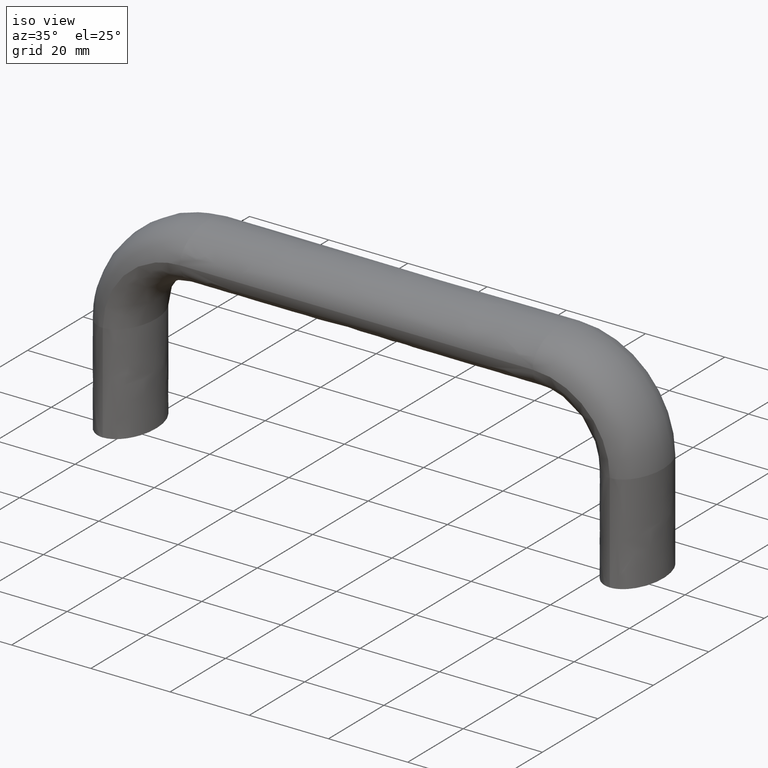
[diagram: clean part render]
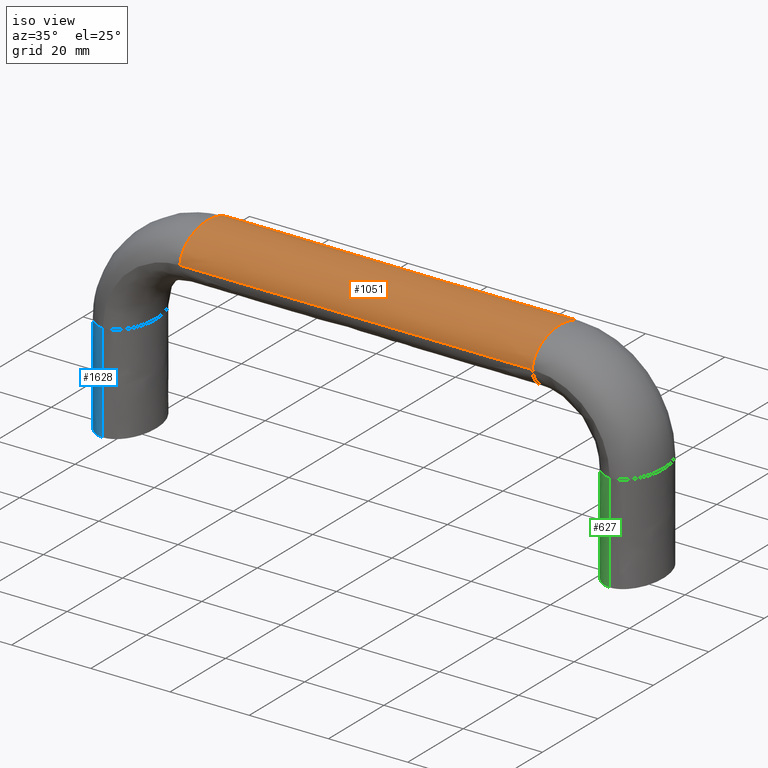
[diagram: same view with three faces highlighted in distinct colors, each labeled with its STEP entity id]
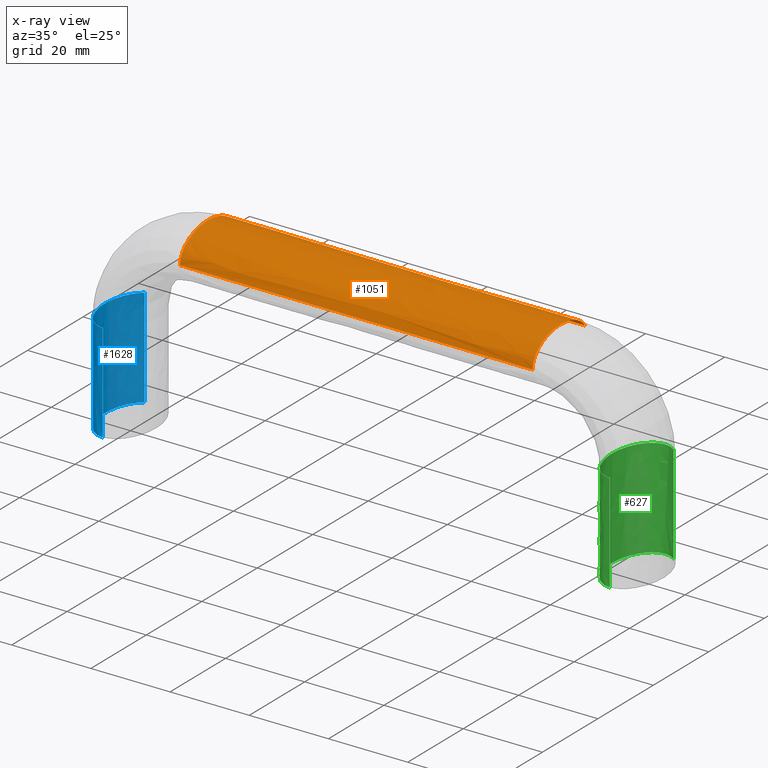
[diagram: x-ray of the same camera — body ghosted, the three highlighted faces saturated]
A machine part, iso view with three faces highlighted in distinct colors.
The next image is the same camera in x-ray (body ghosted, the three faces saturated) — at least one of them is partly hidden behind the body in this view.
Their STEP definitions:

[orange] entity #1051 — the highlighted face is a freeform B-spline surface patch.
#774=CARTESIAN_POINT('',(108.500007000000000,9.039503756692849,47.265149685643273));
#775=VERTEX_POINT('',#774);
#783=CARTESIAN_POINT('',(108.500007000000000,-10.0,44.500007999999852));
#784=VERTEX_POINT('',#783);
#785=CARTESIAN_POINT('',(108.500007000000000,9.039503756692849,47.265149685643273));
#786=CARTESIAN_POINT('',(108.500007000000000,8.550381046451996,47.942850478044889));
#787=CARTESIAN_POINT('',(108.500007000000000,7.885596350320669,48.566758527716537));
#788=CARTESIAN_POINT('',(108.500007000000000,5.219866587632820,50.299482873463603));
#789=CARTESIAN_POINT('',(108.500007000000000,2.617993877991495,51.000007999999902));
#790=CARTESIAN_POINT('',(108.500007000000000,-2.617993877991495,51.000007999999902));
#791=CARTESIAN_POINT('',(108.500007000000000,-5.219866587632820,50.299482873463603));
#792=CARTESIAN_POINT('',(108.500007000000000,-8.922269036098131,47.892921281961200));
#793=CARTESIAN_POINT('',(108.500007000000000,-10.0,46.201704020694301));
#794=CARTESIAN_POINT('',(108.500007000000000,-10.0,44.500007999999852));
#795=B_SPLINE_CURVE_WITH_KNOTS('',3,(#785,#786,#787,#788,#789,#790,#791,#792,#793,#794),.UNSPECIFIED.,.F.,.U.,(4,2,2,2,4),(0.570000000013989,0.625000000000000,0.750000000000000,0.875000000000000,1.0),.UNSPECIFIED.);
#796=EDGE_CURVE('',#775,#784,#795,.T.);
#916=CARTESIAN_POINT('',(19.054822512384039,9.096864509780549,47.183991545558627));
#917=CARTESIAN_POINT('',(19.054822294441230,8.602094762146560,47.892264700775570));
#918=CARTESIAN_POINT('',(19.054822109332989,7.917438167972254,48.544433898671883));
#919=CARTESIAN_POINT('',(19.054821650033020,5.219866576463987,50.297918230845113));
#920=CARTESIAN_POINT('',(19.054821485023279,2.617993877991495,50.998467150699057));
#921=CARTESIAN_POINT('',(19.054821485023279,-2.617993877991495,50.998467150699057));
#922=CARTESIAN_POINT('',(19.054821650033009,-5.219866585683339,50.297918234203578));
#923=CARTESIAN_POINT('',(19.054822285841620,-8.954109973809258,47.870571744125137));
#924=CARTESIAN_POINT('',(19.054822809386199,-10.036828642468540,46.141659132204872));
#925=CARTESIAN_POINT('',(19.054823447550501,-10.0,44.410398683817448));
#926=CARTESIAN_POINT('',(22.911487697380650,9.096864509780549,47.200745213840847));
#927=CARTESIAN_POINT('',(22.911489660311471,8.602094762146560,47.908731138406509));
#928=CARTESIAN_POINT('',(22.911491327513470,7.917438167972254,48.560649494397602));
#929=CARTESIAN_POINT('',(22.911495464259779,5.219866576463987,50.313494296925143));
#930=CARTESIAN_POINT('',(22.911496950441862,2.617993877991495,51.013805159517247));
#931=CARTESIAN_POINT('',(22.911496950441862,-2.617993877991495,51.013805159517247));
#932=CARTESIAN_POINT('',(22.911495464259801,-5.219866585683339,50.313494300281597));
#933=CARTESIAN_POINT('',(22.911489737765049,-8.954109973809258,47.887033110534887));
#934=CARTESIAN_POINT('',(22.911485022391179,-10.036828642468540,46.158815320320159));
#935=CARTESIAN_POINT('',(22.911479274679550,-10.0,44.428347965293987));
#936=CARTESIAN_POINT('',(26.768272653597471,9.096864509780550,47.185674069615821));
#937=CARTESIAN_POINT('',(26.768272653623871,8.602094762146562,47.893918517331713));
#938=CARTESIAN_POINT('',(26.768272653646282,7.917438167972254,48.546062644629799));
#939=CARTESIAN_POINT('',(26.768272653701882,5.219866576463989,50.299483058492513));
#940=CARTESIAN_POINT('',(26.768272653721858,2.617993877991495,51.000008185519810));
#941=CARTESIAN_POINT('',(26.768272653721858,-2.617993877991495,51.000008185519810));
#942=CARTESIAN_POINT('',(26.768272653701882,-5.219866585683341,50.299483061850772));
#943=CARTESIAN_POINT('',(26.768272653624908,-8.954109973809260,47.872225053833972));
#944=CARTESIAN_POINT('',(26.768272653561532,-10.036828642468549,46.143381886434099));
#945=CARTESIAN_POINT('',(26.768272653484260,-10.0,44.412200704407681));
#946=CARTESIAN_POINT('',(52.875002624901462,9.096864509780549,47.185673866017979));
#947=CARTESIAN_POINT('',(52.875002624901342,8.602094762146560,47.893918317225300));
#948=CARTESIAN_POINT('',(52.875002624901228,7.917438167972255,48.546062447572517));
#949=CARTESIAN_POINT('',(52.875002624900972,5.219866576463987,50.299482869208987));
#950=CARTESIAN_POINT('',(52.875002624900873,2.617993877991494,51.000007999129970));
#951=CARTESIAN_POINT('',(52.875002624900873,-2.617993877991494,51.000007999129970));
#952=CARTESIAN_POINT('',(52.875002624900972,-5.219866585683339,50.299482872567253));
#953=CARTESIAN_POINT('',(52.875002624901327,-8.954109973809260,47.872224853789177));
#954=CARTESIAN_POINT('',(52.875002624901633,-10.036828642468540,46.143381677943466));
#955=CARTESIAN_POINT('',(52.875002624901988,-9.999999999999998,44.412200486276610));
#956=CARTESIAN_POINT('',(75.125004375134964,9.096864509780552,47.185673866017758));
#957=CARTESIAN_POINT('',(75.125004375135063,8.602094762146553,47.893918317225037));
#958=CARTESIAN_POINT('',(75.125004375135191,7.917438167972259,48.546062447572282));
#959=CARTESIAN_POINT('',(75.125004375135461,5.219866576463989,50.299482869208752));
#960=CARTESIAN_POINT('',(75.125004375135546,2.617993877991496,51.000007999129743));
#961=CARTESIAN_POINT('',(75.125004375135546,-2.617993877991496,51.000007999129743));
#962=CARTESIAN_POINT('',(75.125004375135461,-5.219866585683341,50.299482872567012));
#963=CARTESIAN_POINT('',(75.125004375135092,-8.954109973809260,47.872224853788971));
#964=CARTESIAN_POINT('',(75.125004375134779,-10.036828642468549,46.143381677943232));
#965=CARTESIAN_POINT('',(75.125004375134438,-10.000000000000011,44.412200486276383));
#966=CARTESIAN_POINT('',(101.231734346343000,9.096864509780549,47.185674069674327));
#967=CARTESIAN_POINT('',(101.231734346316600,8.602094762146562,47.893918517390233));
#968=CARTESIAN_POINT('',(101.231734346294200,7.917438167972254,48.546062644688313));
#969=CARTESIAN_POINT('',(101.231734346238600,5.219866576463988,50.299483058551019));
#970=CARTESIAN_POINT('',(101.231734346218600,2.617993877991495,51.000008185578331));
#971=CARTESIAN_POINT('',(101.231734346218600,-2.617993877991495,51.000008185578331));
#972=CARTESIAN_POINT('',(101.231734346238600,-5.219866585683340,50.299483061909278));
#973=CARTESIAN_POINT('',(101.231734346315600,-8.954109973809260,47.872225053892478));
#974=CARTESIAN_POINT('',(101.231734346379000,-10.036828642468540,46.143381886492620));
#975=CARTESIAN_POINT('',(101.231734346456310,-10.0,44.412200704466187));
#976=CARTESIAN_POINT('',(105.088519360692800,9.096864509780549,47.200753865117733));
#977=CARTESIAN_POINT('',(105.088517396764200,8.602094762146560,47.908739789691012));
#978=CARTESIAN_POINT('',(105.088515728690790,7.917438167972253,48.560658145688507));
#979=CARTESIAN_POINT('',(105.088511589722700,5.219866576463987,50.313502948232063));
#980=CARTESIAN_POINT('',(105.088510102713700,2.617993877991495,51.013813810829930));
#981=CARTESIAN_POINT('',(105.088510102713700,-2.617993877991495,51.013813810829930));
#982=CARTESIAN_POINT('',(105.088511589722700,-5.219866585683339,50.313502951588532));
#983=CARTESIAN_POINT('',(105.088517319293000,-8.954109973809258,47.887041761819773));
#984=CARTESIAN_POINT('',(105.088522037080590,-10.036828642468540,46.158823971586742));
#985=CARTESIAN_POINT('',(105.088527787547510,-10.0,44.428356616538352));
#986=CARTESIAN_POINT('',(108.945184480977600,9.096864509780549,47.183999545583490));
#987=CARTESIAN_POINT('',(108.945184699031200,8.602094762146560,47.892272700799559));
#988=CARTESIAN_POINT('',(108.945184884236200,7.917438167972254,48.544441898695148));
#989=CARTESIAN_POINT('',(108.945185343782800,5.219866576463987,50.297926230866587));
#990=CARTESIAN_POINT('',(108.945185508884410,2.617993877991495,50.998475150719877));
#991=CARTESIAN_POINT('',(108.945185508884410,-2.617993877991495,50.998475150719877));
#992=CARTESIAN_POINT('',(108.945185343782800,-5.219866585683339,50.297926234225052));
#993=CARTESIAN_POINT('',(108.945184707632710,-8.954109973809258,47.870579744149097));
#994=CARTESIAN_POINT('',(108.945184183820200,-10.036828642468540,46.141667132230893));
#995=CARTESIAN_POINT('',(108.945183545349910,-10.0,44.410406683845963));
#996=B_SPLINE_SURFACE_WITH_KNOTS('',3,3,((#916,#926,#936,#946,#956,#966,#976,#986),(#917,#927,#937,#947,#957,#967,#977,#987),(#918,#928,#938,#948,#958,#968,#978,#988),(#919,#929,#939,#949,#959,#969,#979,#989),(#920,#930,#940,#950,#960,#970,#980,#990),(#921,#931,#941,#951,#961,#971,#981,#991),(#922,#932,#942,#952,#962,#972,#982,#992),(#923,#933,#943,#953,#963,#973,#983,#993),(#924,#934,#944,#954,#964,#974,#984,#994),(#925,#935,#945,#955,#965,#975,#985,#995)),.UNSPECIFIED.,.F.,.F.,.U.,(4,2,2,2,4),(4,2,2,4),(0.0,3.517527602729955,11.211157536430241,18.904787470130511,26.730747835732640),(0.0,11.570257928521571,78.320685863253487,89.890943791597834),.UNSPECIFIED.);
#997=ORIENTED_EDGE('',*,*,#796,.F.);
#998=CARTESIAN_POINT('',(19.500000000000000,9.039503756692850,47.265141685643357));
#999=VERTEX_POINT('',#998);
#1000=CARTESIAN_POINT('',(19.500000000000000,9.039503756692850,47.265141685643357));
#1001=CARTESIAN_POINT('',(23.208281354448619,9.039503756879462,47.279061864487538));
#1002=CARTESIAN_POINT('',(26.916667250010001,9.039503756879462,47.265149685384714));
#1003=CARTESIAN_POINT('',(34.333334499989903,9.039503756879462,47.265149685384714));
#1004=CARTESIAN_POINT('',(38.041668125010048,9.039503756879462,47.265149685384714));
#1005=CARTESIAN_POINT('',(49.166668999979912,9.039503756879462,47.265149685384714));
#1006=CARTESIAN_POINT('',(56.583336250030300,9.039503756879462,47.265149685384714));
#1007=CARTESIAN_POINT('',(71.416670749969597,9.039503756879462,47.265149685384714));
#1008=CARTESIAN_POINT('',(78.833338000143399,9.039503756879462,47.265149685384714));
#1009=CARTESIAN_POINT('',(89.958338874928103,9.039503756879462,47.265149685384714));
#1010=CARTESIAN_POINT('',(93.666672499994490,9.039503756879462,47.265149685384714));
#1011=CARTESIAN_POINT('',(101.083339750005390,9.039503756879462,47.265149685384714));
#1012=CARTESIAN_POINT('',(104.791725699267500,9.039503756879462,47.279069864285972));
#1013=CARTESIAN_POINT('',(108.500007000000000,9.039503756692849,47.265149685643273));
#1014=B_SPLINE_CURVE_WITH_KNOTS('',3,(#1000,#1001,#1002,#1003,#1004,#1005,#1006,#1007,#1008,#1009,#1010,#1011,#1012,#1013),.UNSPECIFIED.,.F.,.U.,(4,2,2,2,2,2,4),(0.277790037325163,0.333342527993871,0.388895018662581,0.500000000000000,0.611104981337419,0.666657472006128,0.722209962674838),.UNSPECIFIED.);
#1015=EDGE_CURVE('',#999,#775,#1014,.T.);
#1016=ORIENTED_EDGE('',*,*,#1015,.F.);
#1017=CARTESIAN_POINT('',(19.500000000000000,-10.0,44.499999999999950));
#1018=VERTEX_POINT('',#1017);
#1019=CARTESIAN_POINT('',(19.500000000000000,9.039503756692850,47.265141685643357));
#1020=CARTESIAN_POINT('',(19.500000000000000,8.550381046451999,47.942842478044980));
#1021=CARTESIAN_POINT('',(19.500000000000000,7.885596350320671,48.566750527716643));
#1022=CARTESIAN_POINT('',(19.500000000000000,5.219866587632820,50.299474873463701));
#1023=CARTESIAN_POINT('',(19.500000000000000,2.617993877991495,51.0));
#1024=CARTESIAN_POINT('',(19.500000000000000,-2.617993877991495,51.0));
#1025=CARTESIAN_POINT('',(19.500000000000000,-5.219866587632820,50.299474873463701));
#1026=CARTESIAN_POINT('',(19.500000000000000,-8.922269036098131,47.892913281961299));
#1027=CARTESIAN_POINT('',(19.500000000000000,-10.0,46.201696020694399));
#1028=CARTESIAN_POINT('',(19.500000000000000,-10.0,44.499999999999950));
#1029=B_SPLINE_CURVE_WITH_KNOTS('',3,(#1019,#1020,#1021,#1022,#1023,#1024,#1025,#1026,#1027,#1028),.UNSPECIFIED.,.F.,.U.,(4,2,2,2,4),(0.570000000013989,0.625000000000000,0.750000000000000,0.875000000000000,1.0),.UNSPECIFIED.);
#1030=EDGE_CURVE('',#999,#1018,#1029,.T.);
#1031=ORIENTED_EDGE('',*,*,#1030,.T.);
#1032=CARTESIAN_POINT('',(19.500000000000000,-10.0,44.499999999999950));
#1033=CARTESIAN_POINT('',(23.208273629977320,-10.0,44.514908840575480));
#1034=CARTESIAN_POINT('',(26.916667250010001,-10.0,44.500007999999852));
#1035=CARTESIAN_POINT('',(34.333334499989903,-10.0,44.500007999999852));
#1036=CARTESIAN_POINT('',(38.041668125010048,-10.0,44.500007999999852));
#1037=CARTESIAN_POINT('',(49.166668999979912,-10.0,44.500007999999852));
#1038=CARTESIAN_POINT('',(56.583336250030300,-10.0,44.500007999999852));
#1039=CARTESIAN_POINT('',(71.416670749969597,-10.0,44.500007999999852));
#1040=CARTESIAN_POINT('',(78.833338000143399,-10.0,44.500007999999852));
#1041=CARTESIAN_POINT('',(89.958338874928103,-10.0,44.500007999999852));
#1042=CARTESIAN_POINT('',(93.666672499994490,-10.0,44.500007999999852));
#1043=CARTESIAN_POINT('',(101.083339750005390,-10.0,44.500007999999852));
#1044=CARTESIAN_POINT('',(104.791733427554700,-10.0,44.514916840344121));
#1045=CARTESIAN_POINT('',(108.500007000000000,-10.0,44.500007999999852));
#1046=B_SPLINE_CURVE_WITH_KNOTS('',3,(#1032,#1033,#1034,#1035,#1036,#1037,#1038,#1039,#1040,#1041,#1042,#1043,#1044,#1045),.UNSPECIFIED.,.F.,.U.,(4,2,2,2,2,2,4),(0.277790037325163,0.333342527993871,0.388895018662581,0.500000000000000,0.611104981337419,0.666657472006128,0.722209962674838),.UNSPECIFIED.);
#1047=EDGE_CURVE('',#1018,#784,#1046,.T.);
#1048=ORIENTED_EDGE('',*,*,#1047,.T.);
#1049=EDGE_LOOP('',(#997,#1016,#1031,#1048));
#1050=FACE_OUTER_BOUND('',#1049,.T.);
#1051=ADVANCED_FACE('',(#1050),#996,.T.);

[blue] entity #1628 — the highlighted face is a freeform B-spline surface patch.
#1406=CARTESIAN_POINT('',(-2.765141685643417,9.039503756692852,25.0));
#1407=VERTEX_POINT('',#1406);
#1415=CARTESIAN_POINT('',(3.747003E-014,-10.0,25.0));
#1416=VERTEX_POINT('',#1415);
#1417=CARTESIAN_POINT('',(-2.765141685643417,9.039503756692852,25.0));
#1418=CARTESIAN_POINT('',(-3.442842478045029,8.550381046452003,25.0));
#1419=CARTESIAN_POINT('',(-4.066750527716681,7.885596350320673,25.0));
#1420=CARTESIAN_POINT('',(-5.799474873463780,5.219866587632820,25.0));
#1421=CARTESIAN_POINT('',(-6.500000000000000,2.617993877991495,25.0));
#1422=CARTESIAN_POINT('',(-6.500000000000000,-2.617993877991495,25.0));
#1423=CARTESIAN_POINT('',(-5.799474873463780,-5.219866587632820,25.0));
#1424=CARTESIAN_POINT('',(-3.392913281961335,-8.922269036098131,25.0));
#1425=CARTESIAN_POINT('',(-1.701696020694470,-10.0,25.0));
#1426=CARTESIAN_POINT('',(0.0,-10.0,25.0));
#1427=B_SPLINE_CURVE_WITH_KNOTS('',3,(#1417,#1418,#1419,#1420,#1421,#1422,#1423,#1424,#1425,#1426),.UNSPECIFIED.,.F.,.U.,(4,2,2,2,4),(0.570000000013989,0.625000000000000,0.750000000000000,0.875000000000000,1.0),.UNSPECIFIED.);
#1428=EDGE_CURVE('',#1407,#1416,#1427,.T.);
#1548=CARTESIAN_POINT('',(-2.765141685384861,9.039503756879462,0.0));
#1549=CARTESIAN_POINT('',(-3.442842477727653,8.550381046790173,0.0));
#1550=CARTESIAN_POINT('',(-4.066750527582020,7.885596350527845,0.0));
#1551=CARTESIAN_POINT('',(-5.799474873463780,5.219866587632820,0.0));
#1552=CARTESIAN_POINT('',(-6.500000000000000,2.617993877991495,0.0));
#1553=CARTESIAN_POINT('',(-6.500000000000000,-2.617993877991495,0.0));
#1554=CARTESIAN_POINT('',(-5.799474873463780,-5.219866587632820,0.0));
#1555=CARTESIAN_POINT('',(-3.392913281961335,-8.922269036098131,0.0));
#1556=CARTESIAN_POINT('',(-1.701696020694470,-10.0,0.0));
#1557=CARTESIAN_POINT('',(0.0,-10.0,0.0));
#1558=CARTESIAN_POINT('',(-2.765141685384861,9.039503756879462,8.333333330654043));
#1559=CARTESIAN_POINT('',(-3.442842477727653,8.550381046790173,8.333333330577220));
#1560=CARTESIAN_POINT('',(-4.066750527582020,7.885596350527845,8.333333330508420));
#1561=CARTESIAN_POINT('',(-5.799474873463780,5.219866587632820,8.333333330322889));
#1562=CARTESIAN_POINT('',(-6.500000000000000,2.617993877991495,8.333333330251030));
#1563=CARTESIAN_POINT('',(-6.500000000000000,-2.617993877991495,8.333333330251030));
#1564=CARTESIAN_POINT('',(-5.799474873463780,-5.219866587632820,8.333333330322889));
#1565=CARTESIAN_POINT('',(-3.392913281961335,-8.922269036098131,8.333333330580571));
#1566=CARTESIAN_POINT('',(-1.701696020694470,-10.0,8.333333330771970));
#1567=CARTESIAN_POINT('',(0.0,-10.0,8.333333330977913));
#1568=CARTESIAN_POINT('',(-2.765255463481482,9.039503756879462,16.666666670234068));
#1569=CARTESIAN_POINT('',(-3.442957903478828,8.550381046790173,16.666666670336362));
#1570=CARTESIAN_POINT('',(-4.066867394460879,7.885596350527845,16.666666670427968));
#1571=CARTESIAN_POINT('',(-5.799595541806690,5.219866587632820,16.666666670674999));
#1572=CARTESIAN_POINT('',(-6.500122100290400,2.617993877991495,16.666666670770649));
#1573=CARTESIAN_POINT('',(-6.500122100290400,-2.617993877991495,16.666666670770649));
#1574=CARTESIAN_POINT('',(-5.799595541806690,-5.219866587632820,16.666666670674999));
#1575=CARTESIAN_POINT('',(-3.393028670493060,-8.922269036098131,16.666666670331900));
#1576=CARTESIAN_POINT('',(-1.701807325264690,-10.0,16.666666670077049));
#1577=CARTESIAN_POINT('',(-0.000106634018478,-10.0,16.666666669802851));
#1578=CARTESIAN_POINT('',(-2.765141685384861,9.039503756879462,25.0));
#1579=CARTESIAN_POINT('',(-3.442842477727653,8.550381046790173,25.0));
#1580=CARTESIAN_POINT('',(-4.066750527582020,7.885596350527845,25.0));
#1581=CARTESIAN_POINT('',(-5.799474873463780,5.219866587632820,25.0));
#1582=CARTESIAN_POINT('',(-6.500000000000000,2.617993877991495,25.0));
#1583=CARTESIAN_POINT('',(-6.500000000000000,-2.617993877991495,25.0));
#1584=CARTESIAN_POINT('',(-5.799474873463780,-5.219866587632820,25.0));
#1585=CARTESIAN_POINT('',(-3.392913281961335,-8.922269036098131,25.0));
#1586=CARTESIAN_POINT('',(-1.701696020694470,-10.0,25.0));
#1587=CARTESIAN_POINT('',(0.0,-10.0,25.0));
#1588=B_SPLINE_SURFACE_WITH_KNOTS('',3,3,((#1548,#1558,#1568,#1578),(#1549,#1559,#1569,#1579),(#1550,#1560,#1570,#1580),(#1551,#1561,#1571,#1581),(#1552,#1562,#1572,#1582),(#1553,#1563,#1573,#1583),(#1554,#1564,#1574,#1584),(#1555,#1565,#1575,#1585),(#1556,#1566,#1576,#1586),(#1557,#1567,#1577,#1587)),.UNSPECIFIED.,.F.,.F.,.U.,(4,2,2,2,4),(4,4),(0.0,3.385193623603746,11.078815495430430,18.772437367257119,26.466059239083808),(0.0,25.000000004368712),.UNSPECIFIED.);
#1589=ORIENTED_EDGE('',*,*,#1428,.F.);
#1590=CARTESIAN_POINT('',(-2.767718893953111,9.043070625830358,0.0));
#1591=VERTEX_POINT('',#1590);
#1592=CARTESIAN_POINT('',(-2.767718893953111,9.043070625830358,0.0));
#1593=CARTESIAN_POINT('',(-2.766859824516823,9.041881669451572,8.333333330654044));
#1594=CARTESIAN_POINT('',(-2.766114533176235,9.040692713071511,16.666666670234068));
#1595=CARTESIAN_POINT('',(-2.765141685643417,9.039503756692852,25.0));
#1596=B_SPLINE_CURVE_WITH_KNOTS('',3,(#1592,#1593,#1594,#1595),.UNSPECIFIED.,.F.,.U.,(4,4),(0.0,0.124837047863849),.UNSPECIFIED.);
#1597=EDGE_CURVE('',#1591,#1407,#1596,.T.);
#1598=ORIENTED_EDGE('',*,*,#1597,.F.);
#1599=CARTESIAN_POINT('',(3.252607E-016,-10.0,0.0));
#1600=VERTEX_POINT('',#1599);
#1601=CARTESIAN_POINT('',(-2.767718893953111,9.043070625830358,0.0));
#1602=CARTESIAN_POINT('',(-3.789574659081554,8.304902883637121,0.0));
#1603=CARTESIAN_POINT('',(-4.593843456444844,7.067814539892346,0.0));
#1604=CARTESIAN_POINT('',(-5.508528250208879,5.660889516472645,0.0));
#1605=CARTESIAN_POINT('',(-6.003269068346328,3.824138429711756,0.0));
#1606=CARTESIAN_POINT('',(-6.498383111718050,1.986001724805870,0.0));
#1607=CARTESIAN_POINT('',(-6.498549654176593,-0.002007286109192,0.0));
#1608=CARTESIAN_POINT('',(-6.498716322272312,-1.991516021929436,0.0));
#1609=CARTESIAN_POINT('',(-6.004283234472674,-3.828126606434021,0.0));
#1610=CARTESIAN_POINT('',(-5.509477153587659,-5.666122703084635,0.0));
#1611=CARTESIAN_POINT('',(-4.595717391098237,-7.071727548601292,0.0));
#1612=CARTESIAN_POINT('',(-3.681268301609613,-8.478392761853586,0.0));
#1613=CARTESIAN_POINT('',(-2.487293505025882,-9.239001272481852,0.0));
#1614=CARTESIAN_POINT('',(-1.292964223232608,-9.999835604013512,0.0));
#1615=CARTESIAN_POINT('',(3.252607E-016,-10.0,0.0));
#1616=B_SPLINE_CURVE_WITH_KNOTS('',2,(#1601,#1602,#1603,#1604,#1605,#1606,#1607,#1608,#1609,#1610,#1611,#1612,#1613,#1614,#1615),.UNSPECIFIED.,.F.,.U.,(3,2,2,2,2,2,2,3),(0.140006435623409,0.250000000000000,0.375000000000000,0.500000000000000,0.625000000000000,0.750000000000000,0.875000000000000,1.0),.UNSPECIFIED.);
#1617=EDGE_CURVE('',#1591,#1600,#1616,.T.);
#1618=ORIENTED_EDGE('',*,*,#1617,.T.);
#1619=CARTESIAN_POINT('',(0.0,-10.0,0.0));
#1620=CARTESIAN_POINT('',(0.0,-10.0,8.333333330977913));
#1621=CARTESIAN_POINT('',(-0.000106634018477,-10.0,16.666666669802851));
#1622=CARTESIAN_POINT('',(0.0,-10.0,25.0));
#1623=B_SPLINE_CURVE_WITH_KNOTS('',3,(#1619,#1620,#1621,#1622),.UNSPECIFIED.,.F.,.U.,(4,4),(0.0,0.124837047863849),.UNSPECIFIED.);
#1624=EDGE_CURVE('',#1600,#1416,#1623,.T.);
#1625=ORIENTED_EDGE('',*,*,#1624,.T.);
#1626=EDGE_LOOP('',(#1589,#1598,#1618,#1625));
#1627=FACE_OUTER_BOUND('',#1626,.T.);
#1628=ADVANCED_FACE('',(#1627),#1588,.T.);

[green] entity #627 — the highlighted face is a freeform B-spline surface patch.
#457=CARTESIAN_POINT('',(130.765148685643200,9.039503756692850,25.0));
#458=VERTEX_POINT('',#457);
#459=CARTESIAN_POINT('',(128.000006999999810,-10.0,25.0));
#460=VERTEX_POINT('',#459);
#474=CARTESIAN_POINT('',(128.000006999999810,-10.0,2.244912E-030));
#475=VERTEX_POINT('',#474);
#476=CARTESIAN_POINT('',(128.000006999999810,-10.0,25.0));
#477=CARTESIAN_POINT('',(128.000113633782490,-10.0,16.666666669802851));
#478=CARTESIAN_POINT('',(128.000006999999810,-10.0,8.333333330977924));
#479=CARTESIAN_POINT('',(128.000006999999810,-10.0,9.022597E-030));
#480=B_SPLINE_CURVE_WITH_KNOTS('',3,(#476,#477,#478,#479),.UNSPECIFIED.,.F.,.U.,(4,4),(0.875162952136151,1.0),.UNSPECIFIED.);
#481=EDGE_CURVE('',#460,#475,#480,.T.);
#483=CARTESIAN_POINT('',(130.767738322028010,9.043088328509544,-2.464482E-016));
#484=VERTEX_POINT('',#483);
#503=CARTESIAN_POINT('',(130.765148685643200,9.039503756692850,25.0));
#504=CARTESIAN_POINT('',(130.766125675659200,9.040698613964571,16.666666670234040));
#505=CARTESIAN_POINT('',(130.766875109900010,9.041893471237698,8.333333330654064));
#506=CARTESIAN_POINT('',(130.767738322028010,9.043088328509544,-2.464482E-016));
#507=B_SPLINE_CURVE_WITH_KNOTS('',3,(#503,#504,#505,#506),.UNSPECIFIED.,.F.,.U.,(4,4),(0.875162952136151,1.0),.UNSPECIFIED.);
#508=EDGE_CURVE('',#458,#484,#507,.T.);
#513=CARTESIAN_POINT('',(128.000006999999810,-10.0,25.0));
#514=CARTESIAN_POINT('',(126.298310979305400,-10.0,25.0));
#515=CARTESIAN_POINT('',(124.607093718038400,-8.922269036098131,25.0));
#516=CARTESIAN_POINT('',(122.200532126536000,-5.219866587632820,25.0));
#517=CARTESIAN_POINT('',(121.500006999999800,-2.617993877991495,25.0));
#518=CARTESIAN_POINT('',(121.500006999999800,2.617993877991495,25.0));
#519=CARTESIAN_POINT('',(122.200532126536000,5.219866587632830,25.0));
#520=CARTESIAN_POINT('',(124.607093718038400,8.922269036098131,25.0));
#521=CARTESIAN_POINT('',(126.298310979305400,10.0,25.0));
#522=CARTESIAN_POINT('',(128.952956771588700,10.0,25.0));
#523=CARTESIAN_POINT('',(129.902620404221100,9.662023569720375,25.0));
#524=CARTESIAN_POINT('',(130.765148685384700,9.039503756879462,25.0));
#525=CARTESIAN_POINT('',(128.000113633782490,-10.0,16.666666669802851));
#526=CARTESIAN_POINT('',(126.298412942534990,-10.0,16.666666669528649));
#527=CARTESIAN_POINT('',(124.607190375280000,-8.922269036098131,16.666666669238499));
#528=CARTESIAN_POINT('',(122.200620301681000,-5.219866587632820,16.666666668806950));
#529=CARTESIAN_POINT('',(121.500092470035400,-2.617993877991495,16.666666668677649));
#530=CARTESIAN_POINT('',(121.500092470035400,2.617993877991495,16.666666668677649));
#531=CARTESIAN_POINT('',(122.200620301681000,5.219866587632830,16.666666668806950));
#532=CARTESIAN_POINT('',(124.607190375343390,8.922269036098131,16.666666669238499));
#533=CARTESIAN_POINT('',(126.298412942534990,10.0,16.666666669528649));
#534=CARTESIAN_POINT('',(128.953066020881100,10.0,16.666666669956399));
#535=CARTESIAN_POINT('',(129.902732085082190,9.662023569720375,16.666666670103869));
#536=CARTESIAN_POINT('',(130.765262463272710,9.039503756879462,16.666666670234040));
#537=CARTESIAN_POINT('',(128.000006999999810,-10.0,8.333333330977924));
#538=CARTESIAN_POINT('',(126.298310979305400,-10.0,8.333333331183860));
#539=CARTESIAN_POINT('',(124.607093718038400,-8.922269036098131,8.333333331401761));
#540=CARTESIAN_POINT('',(122.200532126536000,-5.219866587632820,8.333333331725909));
#541=CARTESIAN_POINT('',(121.500006999999800,-2.617993877991495,8.333333331822999));
#542=CARTESIAN_POINT('',(121.500006999999800,2.617993877991495,8.333333331822999));
#543=CARTESIAN_POINT('',(122.200532126536000,5.219866587632830,8.333333331725909));
#544=CARTESIAN_POINT('',(124.607093718038400,8.922269036098131,8.333333331401761));
#545=CARTESIAN_POINT('',(126.298310979305400,10.0,8.333333331183860));
#546=CARTESIAN_POINT('',(128.952956771588700,10.0,8.333333330862601));
#547=CARTESIAN_POINT('',(129.902620404221100,9.662023569720375,8.333333330751838));
#548=CARTESIAN_POINT('',(130.765148685384700,9.039503756879462,8.333333330654064));
#549=CARTESIAN_POINT('',(128.000006999999810,-10.0,9.003722E-030));
#550=CARTESIAN_POINT('',(126.298310979305400,-10.0,3.027664E-016));
#551=CARTESIAN_POINT('',(124.607093718038400,-8.922269036098131,6.036683E-016));
#552=CARTESIAN_POINT('',(122.200532126536000,-5.219866587632820,1.031845E-015));
#553=CARTESIAN_POINT('',(121.500006999999800,-2.617993877991495,1.156482E-015));
#554=CARTESIAN_POINT('',(121.500006999999800,2.617993877991495,1.156482E-015));
#555=CARTESIAN_POINT('',(122.200532126536000,5.219866587632830,1.031845E-015));
#556=CARTESIAN_POINT('',(124.607093718038400,8.922269036098131,6.036683E-016));
#557=CARTESIAN_POINT('',(126.298310979305400,10.0,3.027664E-016));
#558=CARTESIAN_POINT('',(128.952956771588700,10.0,-1.695492E-016));
#559=CARTESIAN_POINT('',(129.902620404221100,9.662023569720375,-3.385137E-016));
#560=CARTESIAN_POINT('',(130.765148685384700,9.039503756879462,-4.919750E-016));
#561=B_SPLINE_SURFACE_WITH_KNOTS('',3,3,((#513,#525,#537,#549),(#514,#526,#538,#550),(#515,#527,#539,#551),(#516,#528,#540,#552),(#517,#529,#541,#553),(#518,#530,#542,#554),(#519,#531,#543,#555),(#520,#532,#544,#556),(#521,#533,#545,#557),(#522,#534,#546,#558),(#523,#535,#547,#559),(#524,#536,#548,#560)),.UNSPECIFIED.,.F.,.F.,.U.,(4,2,2,2,2,4),(4,4),(0.0,7.693622043919496,15.387244087838990,23.080866131758491,30.774488175677980,35.082916520272903),(0.0,25.000000003826290),.UNSPECIFIED.);
#562=CARTESIAN_POINT('',(128.000006999999810,10.0,25.0));
#563=VERTEX_POINT('',#562);
#564=CARTESIAN_POINT('',(128.000006999999810,10.0,25.0));
#565=CARTESIAN_POINT('',(128.952956771779100,10.0,25.0));
#566=CARTESIAN_POINT('',(129.902620404600700,9.662023569585280,25.0));
#567=CARTESIAN_POINT('',(130.765148685643200,9.039503756692850,25.0));
#568=B_SPLINE_CURVE_WITH_KNOTS('',3,(#564,#565,#566,#567),.UNSPECIFIED.,.F.,.U.,(4,4),(0.500000000000000,0.570000000013990),.UNSPECIFIED.);
#569=EDGE_CURVE('',#563,#458,#568,.T.);
#570=ORIENTED_EDGE('',*,*,#569,.T.);
#571=ORIENTED_EDGE('',*,*,#508,.T.);
#572=CARTESIAN_POINT('',(128.000006999999810,10.0,8.618537E-030));
#573=VERTEX_POINT('',#572);
#574=CARTESIAN_POINT('',(128.000006999999810,10.0,8.618537E-030));
#575=CARTESIAN_POINT('',(129.291915429159390,9.998305116528963,-1.271980E-016));
#576=CARTESIAN_POINT('',(130.485151365502300,9.235614506326396,-2.238775E-016));
#577=CARTESIAN_POINT('',(130.628461118032790,9.144014011171633,-2.354889E-016));
#578=CARTESIAN_POINT('',(130.767738322028010,9.043088328509544,-2.464482E-016));
#579=B_SPLINE_CURVE_WITH_KNOTS('',2,(#574,#575,#576,#577,#578),.UNSPECIFIED.,.F.,.U.,(3,2,3),(0.0,0.125000000000000,0.140017178929429),.UNSPECIFIED.);
#580=EDGE_CURVE('',#573,#484,#579,.T.);
#581=ORIENTED_EDGE('',*,*,#580,.F.);
#582=CARTESIAN_POINT('',(128.000006999999810,-9.999999999999991,1.614772E-029));
#583=CARTESIAN_POINT('',(126.707017830758600,-9.999801078588824,2.300491E-016));
#584=CARTESIAN_POINT('',(125.512564689626700,-9.238795325112877,4.425666E-016));
#585=CARTESIAN_POINT('',(124.318466070474100,-8.478015443424365,6.550211E-016));
#586=CARTESIAN_POINT('',(123.403812922287200,-7.071067811865467,8.177565E-016));
#587=CARTESIAN_POINT('',(122.489849254913100,-5.665180760919563,9.803692E-016));
#588=CARTESIAN_POINT('',(121.994790038676400,-3.826834323650910,1.068450E-015));
#589=CARTESIAN_POINT('',(121.500104006350000,-1.989873662647719,1.156465E-015));
#590=CARTESIAN_POINT('',(121.500006999999800,2.910405E-015,1.156482E-015));
#591=CARTESIAN_POINT('',(121.499910066774600,1.988373662543318,1.156500E-015));
#592=CARTESIAN_POINT('',(121.994790038676400,3.826834323650904,1.068450E-015));
#593=CARTESIAN_POINT('',(122.489296961766400,5.663909122318558,9.804675E-016));
#594=CARTESIAN_POINT('',(123.403812922287200,7.071067811865470,8.177565E-016));
#595=CARTESIAN_POINT('',(124.317639505371200,8.477165761641208,6.551681E-016));
#596=CARTESIAN_POINT('',(125.512564689626700,9.238795325112868,4.425666E-016));
#597=CARTESIAN_POINT('',(126.706511052322600,9.999801000623179,2.301393E-016));
#598=CARTESIAN_POINT('',(128.000006999999810,9.999999999999996,8.618537E-030));
#599=B_SPLINE_CURVE_WITH_KNOTS('',2,(#582,#583,#584,#585,#586,#587,#588,#589,#590,#591,#592,#593,#594,#595,#596,#597,#598),.UNSPECIFIED.,.F.,.U.,(3,2,2,2,2,2,2,2,3),(0.0,0.125000000000000,0.250000000000000,0.375000000000000,0.500000000000000,0.625000000000000,0.750000000000000,0.875000000000000,1.0),.UNSPECIFIED.);
#600=EDGE_CURVE('',#475,#573,#599,.T.);
#601=ORIENTED_EDGE('',*,*,#600,.F.);
#602=ORIENTED_EDGE('',*,*,#481,.F.);
#603=CARTESIAN_POINT('',(124.870789612510190,8.755444309227862,25.0));
#604=VERTEX_POINT('',#603);
#605=CARTESIAN_POINT('',(128.000006999999810,-10.0,25.0));
#606=CARTESIAN_POINT('',(126.298310979305400,-10.0,25.0));
#607=CARTESIAN_POINT('',(124.607093718038400,-8.922269036098131,25.0));
#608=CARTESIAN_POINT('',(122.200532126536000,-5.219866587632820,25.0));
#609=CARTESIAN_POINT('',(121.500006999999800,-2.617993877991495,25.0));
#610=CARTESIAN_POINT('',(121.500006999999800,2.617993877991495,25.0));
#611=CARTESIAN_POINT('',(122.200532126536000,5.219866587632830,25.0));
#612=CARTESIAN_POINT('',(123.836994008625690,7.737500252386184,25.0));
#613=CARTESIAN_POINT('',(124.333411660856400,8.303690947229100,25.0));
#614=CARTESIAN_POINT('',(124.870789612510190,8.755444309227862,25.0));
#615=B_SPLINE_CURVE_WITH_KNOTS('',3,(#605,#606,#607,#608,#609,#610,#611,#612,#613,#614),.UNSPECIFIED.,.F.,.U.,(4,2,2,2,4),(0.0,0.125000000000000,0.250000000000000,0.375000000000000,0.419999999986289),.UNSPECIFIED.);
#616=EDGE_CURVE('',#460,#604,#615,.T.);
#617=ORIENTED_EDGE('',*,*,#616,.T.);
#618=CARTESIAN_POINT('',(124.870789612510190,8.755444309227862,25.0));
#619=CARTESIAN_POINT('',(125.826128193000600,9.558561397034485,25.0));
#620=CARTESIAN_POINT('',(126.910921546568700,10.0,25.0));
#621=CARTESIAN_POINT('',(128.000006999999810,10.0,25.0));
#622=B_SPLINE_CURVE_WITH_KNOTS('',3,(#618,#619,#620,#621),.UNSPECIFIED.,.F.,.U.,(4,4),(0.419999999986289,0.500000000000000),.UNSPECIFIED.);
#623=EDGE_CURVE('',#604,#563,#622,.T.);
#624=ORIENTED_EDGE('',*,*,#623,.T.);
#625=EDGE_LOOP('',(#570,#571,#581,#601,#602,#617,#624));
#626=FACE_OUTER_BOUND('',#625,.T.);
#627=ADVANCED_FACE('',(#626),#561,.T.);